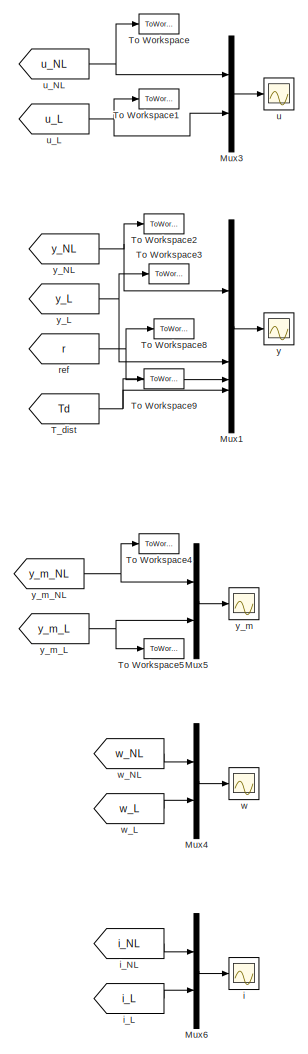
[diagram: root canvas - part 1/5, right side, full height]
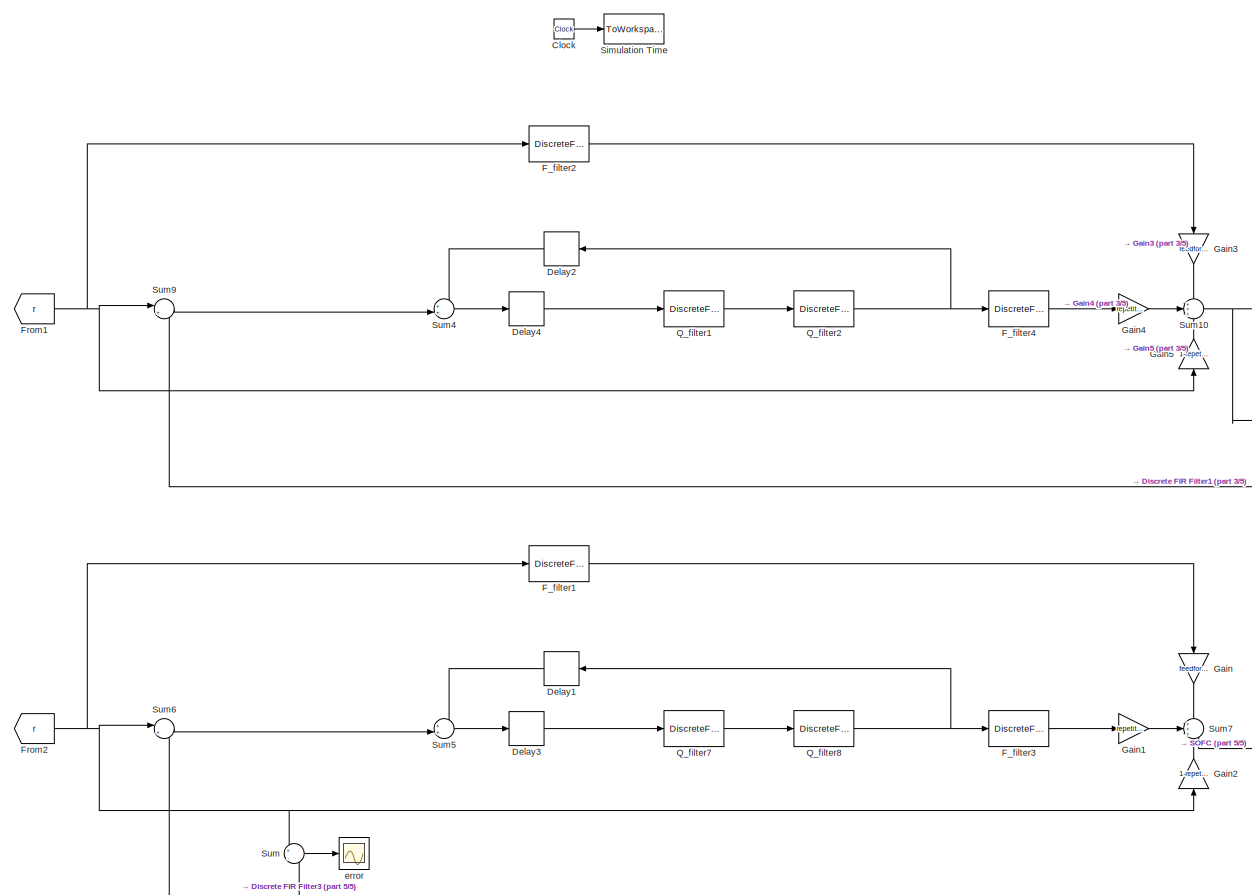
[diagram: root canvas - part 2/5, middle left region]
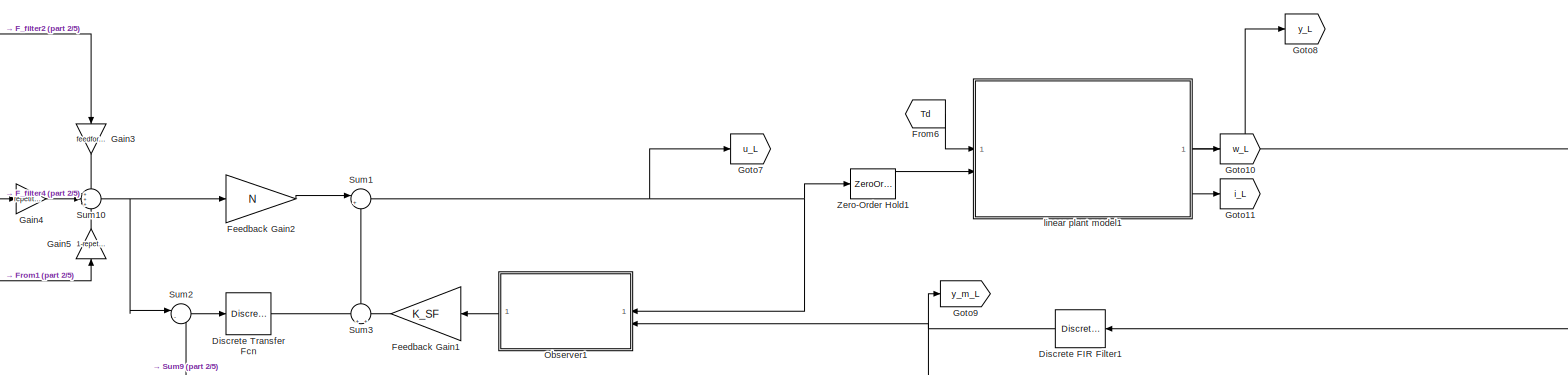
[diagram: root canvas - part 3/5, central region]
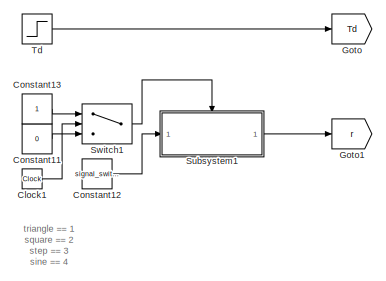
[diagram: root canvas - part 4/5, middle left region]
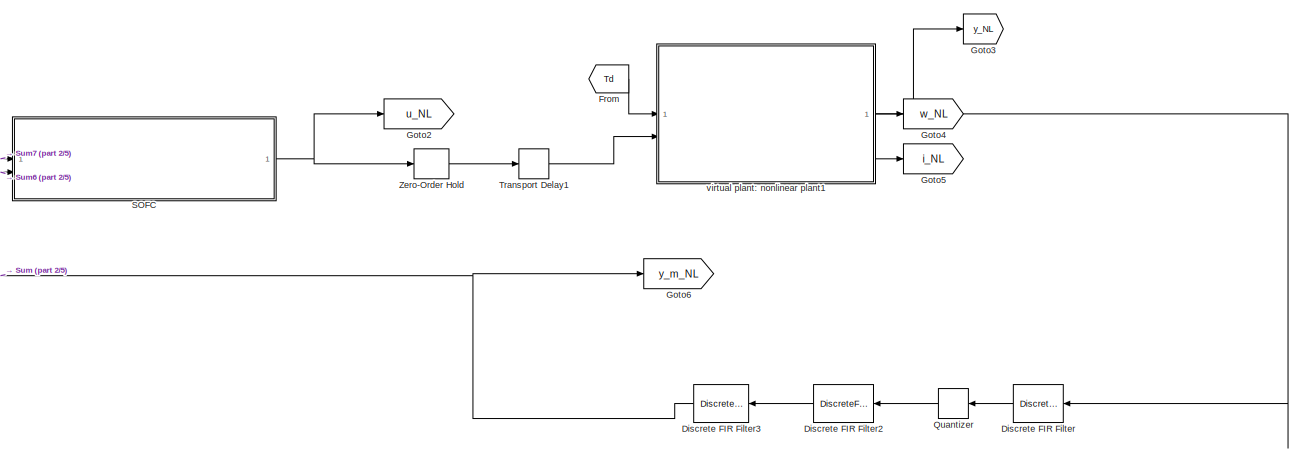
[diagram: root canvas - part 5/5, bottom right region]
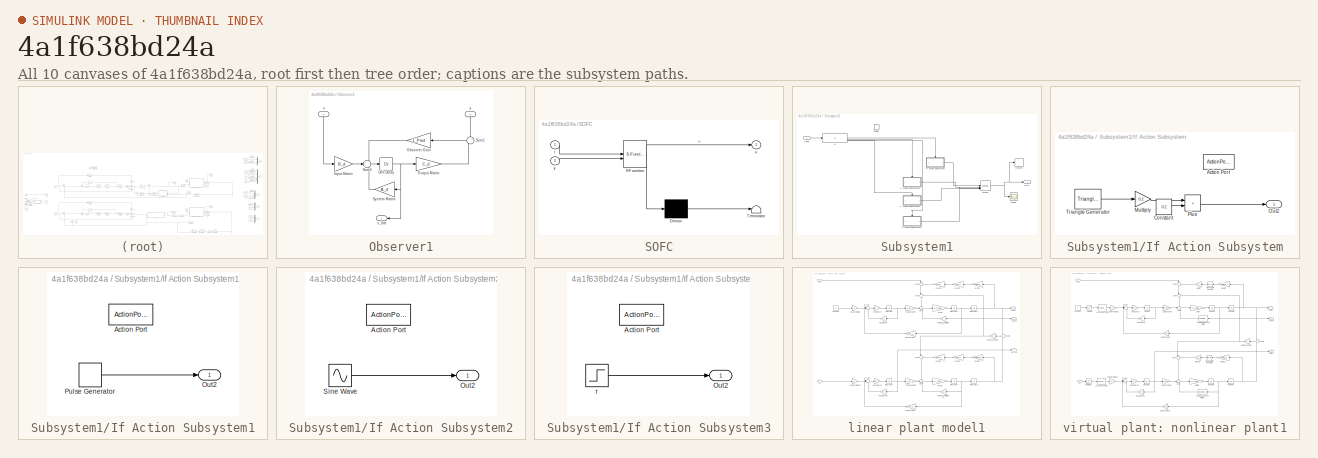
[diagram: thumbnail index - all 10 canvases of the model, root first then tree order]
MODEL slx_4a1f638bd24a
KIND model
CONFIG AbsTol = auto
CONFIG EnableMultiTasking = on
CONFIG FixedStep = auto
CONFIG MaxStep = auto
CONFIG MinStep = auto
CONFIG RelTol = 1e-3
CONFIG SampleTimeConstraint = Unconstrained
CONFIG SolverName = ode45
CONFIG StartTime = 0.0
CONFIG StopTime = 30
BLOCK [Clock] Clock
BLOCK [Clock] Clock1
BLOCK [Constant] Constant11
  Value = 0
BLOCK [Constant] Constant12
  Value = signal_switch
BLOCK [Constant] Constant13
BLOCK [Delay] Delay1
  DelayLength = N1
  InputPortMap = u0
  SampleTime = Ts
BLOCK [Delay] Delay2
  DelayLength = N1
  InputPortMap = u0
  SampleTime = Ts
BLOCK [Delay] Delay3
  DelayLength = Np-N1-N2
  InputPortMap = u0
  SampleTime = Ts
BLOCK [Delay] Delay4
  DelayLength = Np-N1-N2
  InputPortMap = u0
  SampleTime = Ts
BLOCK [DiscreteFir] Discrete FIR Filter
  Coefficients = [1]
  InputPortMap = u0
  OutputPortMap = o0
  SampleTime = Tss
BLOCK [DiscreteFir] Discrete FIR Filter1
  Coefficients = [1]
  InputPortMap = u0
  OutputPortMap = o0
  SampleTime = Ts
BLOCK [DiscreteFir] Discrete FIR Filter2
  Coefficients = [0.25 0.25 0.25 0.25]
  InputPortMap = u0
  OutputPortMap = o0
BLOCK [DiscreteFir] Discrete FIR Filter3
  Coefficients = [1]
  InputPortMap = u0
  OutputPortMap = o0
  SampleTime = Ts
BLOCK [DiscreteTransferFcn] Discrete Transfer Fcn
  Denominator = [1 -1]
  InputPortMap = u0
  Numerator = [0 K_int]
  SampleTime = Ts
BLOCK [DiscreteFilter] F_filter1
  Denominator = F_filter2_denom
  InputPortMap = u0
  Numerator = F_filter2_num
  SampleTime = Ts
BLOCK [DiscreteFilter] F_filter2
  Denominator = F_filter2_denom
  InputPortMap = u0
  Numerator = F_filter2_num
  SampleTime = Ts
BLOCK [DiscreteFilter] F_filter3
  Denominator = F_filter_denom
  InputPortMap = u0
  Numerator = real(F_filter_num)
  SampleTime = Ts
BLOCK [DiscreteFilter] F_filter4
  Denominator = F_filter_denom
  InputPortMap = u0
  Numerator = real(F_filter_num)
  SampleTime = Ts
BLOCK [Gain] Feedback Gain1
  Gain = K_SF
  Multiplication = Matrix(K*u)
BLOCK [Gain] Feedback Gain2
  Gain = N
  Multiplication = Matrix(K*u)
BLOCK [From] From
  GotoTag = Td
BLOCK [From] From1
  GotoTag = r
BLOCK [From] From2
  GotoTag = r
BLOCK [From] From6
  GotoTag = Td
BLOCK [Gain] Gain
  Gain = feedforward_switch
  NameLocation = left
BLOCK [Gain] Gain1
  Gain = repetitive_switch
BLOCK [Gain] Gain2
  Gain = 1-repetitive_switch
  NameLocation = right
BLOCK [Gain] Gain3
  Gain = feedforward_switch
  NameLocation = left
BLOCK [Gain] Gain4
  Gain = repetitive_switch
BLOCK [Gain] Gain5
  Gain = 1-repetitive_switch
  NameLocation = right
BLOCK [Goto] Goto
  GotoTag = Td
BLOCK [Goto] Goto1
  GotoTag = r
BLOCK [Goto] Goto10
  GotoTag = w_L
BLOCK [Goto] Goto11
  GotoTag = i_L
BLOCK [Goto] Goto2
  GotoTag = u_NL
BLOCK [Goto] Goto3
  GotoTag = y_NL
BLOCK [Goto] Goto4
  GotoTag = w_NL
BLOCK [Goto] Goto5
  GotoTag = i_NL
BLOCK [Goto] Goto6
  GotoTag = y_m_NL
BLOCK [Goto] Goto7
  GotoTag = u_L
BLOCK [Goto] Goto8
  GotoTag = y_L
BLOCK [Goto] Goto9
  GotoTag = y_m_L
BLOCK [Mux] Mux1
  DisplayOption = bar
BLOCK [Mux] Mux3
  DisplayOption = bar
  Inputs = 2
BLOCK [Mux] Mux4
  DisplayOption = bar
  Inputs = 2
BLOCK [Mux] Mux5
  DisplayOption = bar
  Inputs = 2
BLOCK [Mux] Mux6
  DisplayOption = bar
  Inputs = 2
BLOCK [SubSystem] Observer1
  NameLocation = top
BLOCK [Gain] Observer1/Input Matrix
  Gain = B_d
  Multiplication = Matrix(K*u)
BLOCK [Gain] Observer1/Observer Gain
  Gain = L_Pred
  Multiplication = Matrix(K*u)
BLOCK [Gain] Observer1/Output Matrix
  Gain = C_d
  Multiplication = Matrix(K*u)
BLOCK [Sum] Observer1/Sum1
  Inputs = +|-
  NameLocation = top
BLOCK [Sum] Observer1/Sum2
  Inputs = +++
BLOCK [Gain] Observer1/System Matrix
  Gain = A_d
  Multiplication = Matrix(K*u)
BLOCK [UnitDelay] Observer1/Unit Delay
  HasFrameUpgradeWarning = on
  SampleTime = Ts
BLOCK [Inport] Observer1/u
  NameLocation = right
BLOCK [Outport] Observer1/x_hat
BLOCK [Inport] Observer1/y
  NameLocation = right
  Port = 2
BLOCK [DiscreteFilter] Q_filter1
  Denominator = Q_filter_denom
  InputPortMap = u0
  Numerator = Q_filter_num
  SampleTime = Ts
BLOCK [DiscreteFilter] Q_filter2
  Denominator = Q_filter_denom
  InputPortMap = u0
  Numerator = Q_filter_num
  SampleTime = Ts
BLOCK [DiscreteFilter] Q_filter7
  Denominator = Q_filter_denom
  InputPortMap = u0
  Numerator = Q_filter_num
  SampleTime = Ts
BLOCK [DiscreteFilter] Q_filter8
  Denominator = Q_filter_denom
  InputPortMap = u0
  Numerator = Q_filter_num
  SampleTime = Ts
BLOCK [Quantizer] Quantizer
  QuantizationInterval = encoder_resolution
BLOCK [SubSystem] SOFC
  ErrorFcn = Stateflow.Translate.translate
  PermitHierarchicalResolution = ExplicitOnly
  SFBlockType = MATLAB Function
  TreatAsAtomicUnit = on
BLOCK [Demux] SOFC/ Demux 
  Outputs = 1
BLOCK [S-Function] SOFC/ SFunction 
  EnableBusSupport = on
  FunctionName = sf_sfun
  Parameters = A,B,C,K,L,N
  PortCounts = [2 2]
  SFcnIsStateOwnerBlock = off
  SFunctionDeploymentMode = off
  Tag = Stateflow S-Function 1
BLOCK [Terminator] SOFC/ Terminator 
BLOCK [Inport] SOFC/r
BLOCK [Outport] SOFC/u
BLOCK [Inport] SOFC/y
  Port = 2
BLOCK [ToWorkspace] Simulation Time
  FixptAsFi = on
  MaxDataPoints = inf
  SampleTime = -1
  VariableName = SimTime
BLOCK [SubSystem] Subsystem1
BLOCK [EnablePort] Subsystem1/Enable
BLOCK [If] Subsystem1/If
  ElseIfExpressions = u1 == 2,u1==3
  IfExpression = u1 == 1
BLOCK [SubSystem] Subsystem1/If Action Subsystem
  TreatAsAtomicUnit = on
BLOCK [ActionPort] Subsystem1/If Action Subsystem/Action Port
  ActionPortLabel = if(u1 == 1)
BLOCK [Constant] Subsystem1/If Action Subsystem/Constant
  Value = 0.2
BLOCK [Gain] Subsystem1/If Action Subsystem/Multiply
  Gain = 0.2
BLOCK [Outport] Subsystem1/If Action Subsystem/Out2
BLOCK [Sum] Subsystem1/If Action Subsystem/Plus
  IconShape = rectangular
BLOCK [Reference] Subsystem1/If Action Subsystem/Triangle Generator  REF=spsTriangleGeneratorLib/Triangle
Generator
  LibrarySourceBlock = sps_lib/Sources/Signal Generator Sources/Triangle\nGenerator
  SourceBlock = spsTriangleGeneratorLib/Triangle\nGenerator
  SourceType = Triangle Generator
BLOCK [SubSystem] Subsystem1/If Action Subsystem1
  TreatAsAtomicUnit = on
BLOCK [ActionPort] Subsystem1/If Action Subsystem1/Action Port
  ActionPortLabel = elseif(u1 == 2)
BLOCK [Outport] Subsystem1/If Action Subsystem1/Out2
BLOCK [DiscretePulseGenerator] Subsystem1/If Action Subsystem1/Pulse Generator
  Amplitude = 0.4
  Period = 1/d_hz/Ts
  PulseWidth = 1/d_hz/2/Ts
  SampleTime = Ts
BLOCK [SubSystem] Subsystem1/If Action Subsystem2
  TreatAsAtomicUnit = on
BLOCK [ActionPort] Subsystem1/If Action Subsystem2/Action Port
  ActionPortLabel = else
BLOCK [Outport] Subsystem1/If Action Subsystem2/Out2
BLOCK [Sin] Subsystem1/If Action Subsystem2/Sine Wave
  Amplitude = 0.2
  Bias = 0.2
  Offset = 0.75*1/d_hz/Ts
  SampleTime = Ts
  Samples = 1/d_hz/Ts
  SineType = Sample based
BLOCK [SubSystem] Subsystem1/If Action Subsystem3
  TreatAsAtomicUnit = on
BLOCK [ActionPort] Subsystem1/If Action Subsystem3/Action Port
  ActionPortLabel = elseif(u1==3)
BLOCK [Outport] Subsystem1/If Action Subsystem3/Out2
BLOCK [Step] Subsystem1/If Action Subsystem3/r
  After = pi
  SampleTime = Ts
BLOCK [Inport] Subsystem1/Input
BLOCK [Merge] Subsystem1/Merge
  Inputs = 4
BLOCK [Outport] Subsystem1/Out1
BLOCK [Record] Subsystem1/Record
  FileSettingsInternal = {"entries":[{"content":{"excelSettings":{"content":{},"type":"Streamout.ExcelSettings"}},"type":"Streamout.FileSettingStorage","uuid":"6662721f-2ff1-4169-acb3-3573d75459ff"}],"packageUris":["http://schema.mathworks.com/mf0/streamout_blocks/R2020a"],"version":"1.0"}
  Layout = [1 1]
  SignalsInternal = {"entries":[{"content":{"signals":[{"content":{"blockPath":["DOBC_whole_v2/Subsystem1/Record"],"channel":[],"dimensions":[1],"domain":"DOBC_whole_v2/Subsystem1/Record","lineColor":"#22b573","plots":[1],"port":1,"sid":[],"signalID":406,"signalName":"Merge"},"type":"RecordBlkView.Signal","uuid":"65e2031a-14ab-4fd6-b67b-1a04d588579a"}]},"type":"RecordBlkView.InputSignals","uuid":"f925c740-60ff-405b-b...<+110ch>
BLOCK [Scope] Subsystem1/Scope
  Floating = off
  NumInputPorts = 1
  ScopeSpecificationString = Simulink.scopes.TimeScopeBlockCfg('CurrentConfiguration', extmgr.ConfigurationSet(extmgr.Configuration('Core','General UI',true),extmgr.Configuration('Core','Source UI',true),extmgr.Configuration('Sources','WiredSimulink',true,'DataLoggingVariableName','ScopeData1'),extmgr.Configuration('Visuals','Time Domain',true,'SerializedDisplays',{struct('MinYLimReal','-0.05','MaxYLimReal','0.45','YLabelReal...<+1402ch>
BLOCK [Sum] Sum
  Inputs = +|-
BLOCK [Sum] Sum1
  Inputs = |+-
BLOCK [Sum] Sum10
  Inputs = +++
BLOCK [Sum] Sum2
  Inputs = |-+
BLOCK [Sum] Sum3
  Inputs = +|+
  NameLocation = right
BLOCK [Sum] Sum4
  Inputs = ++|
BLOCK [Sum] Sum5
  Inputs = ++|
BLOCK [Sum] Sum6
  Inputs = |+-
BLOCK [Sum] Sum7
  Inputs = +++
BLOCK [Sum] Sum9
  Inputs = |+-
BLOCK [Switch] Switch1
  Criteria = u2 > Threshold
  InputSameDT = off
  SaturateOnIntegerOverflow = off
  Threshold = 1
BLOCK [From] T_dist
  GotoTag = Td
BLOCK [Step] Td
  After = 0.05
  SampleTime = 0
  Time = 5
BLOCK [ToWorkspace] To Workspace
  FixptAsFi = on
  MaxDataPoints = inf
  SampleTime = Ts
  VariableName = u_NL
BLOCK [ToWorkspace] To Workspace1
  FixptAsFi = on
  MaxDataPoints = inf
  SampleTime = Ts
  VariableName = u_L
BLOCK [ToWorkspace] To Workspace2
  FixptAsFi = on
  MaxDataPoints = inf
  SampleTime = Ts
  VariableName = y_NL
BLOCK [ToWorkspace] To Workspace3
  FixptAsFi = on
  MaxDataPoints = inf
  SampleTime = Ts
  VariableName = y_L
BLOCK [ToWorkspace] To Workspace4
  FixptAsFi = on
  MaxDataPoints = inf
  SampleTime = Ts
  VariableName = y_m_NL
BLOCK [ToWorkspace] To Workspace5
  FixptAsFi = on
  MaxDataPoints = inf
  SampleTime = Ts
  VariableName = y_m_L
BLOCK [ToWorkspace] To Workspace8
  FixptAsFi = on
  MaxDataPoints = inf
  SampleTime = Ts
  VariableName = r1
BLOCK [ToWorkspace] To Workspace9
  FixptAsFi = on
  MaxDataPoints = inf
  SampleTime = Ts
  VariableName = Td1
BLOCK [TransportDelay] Transport Delay1
  BufferSize = 4096
  DelayTime = Tcomp
  PadeOrder = 2
BLOCK [ZeroOrderHold] Zero-Order Hold
  SampleTime = Ts
BLOCK [ZeroOrderHold] Zero-Order Hold1
  SampleTime = Ts
BLOCK [Scope] error
  Floating = off
  NumInputPorts = 1
  ScopeSpecificationString = Simulink.scopes.TimeScopeBlockCfg('CurrentConfiguration', extmgr.ConfigurationSet(extmgr.Configuration('Core','General UI',true),extmgr.Configuration('Core','Source UI',true),extmgr.Configuration('Sources','WiredSimulink',true,'DataLoggingVariableName','ScopeData1'),extmgr.Configuration('Visuals','Time Domain',true),extmgr.Configuration('Tools','Plot Navigation',true),extmgr.Configuration('Tools',...<+40ch>
BLOCK [Scope] i
  Floating = off
  NumInputPorts = 1
  ScopeSpecificationString = Simulink.scopes.TimeScopeBlockCfg('CurrentConfiguration', extmgr.ConfigurationSet(extmgr.Configuration('Core','General UI',true),extmgr.Configuration('Core','Source UI',true),extmgr.Configuration('Sources','WiredSimulink',true,'DataLoggingVariableName','ScopeData1'),extmgr.Configuration('Visuals','Time Domain',true,'SerializedDisplays',{struct('MinYLimReal','-3.975','MaxYLimReal','4.56633','YLabel...<+1433ch>
BLOCK [From] i_L
  GotoTag = i_L
BLOCK [From] i_NL
  GotoTag = i_NL
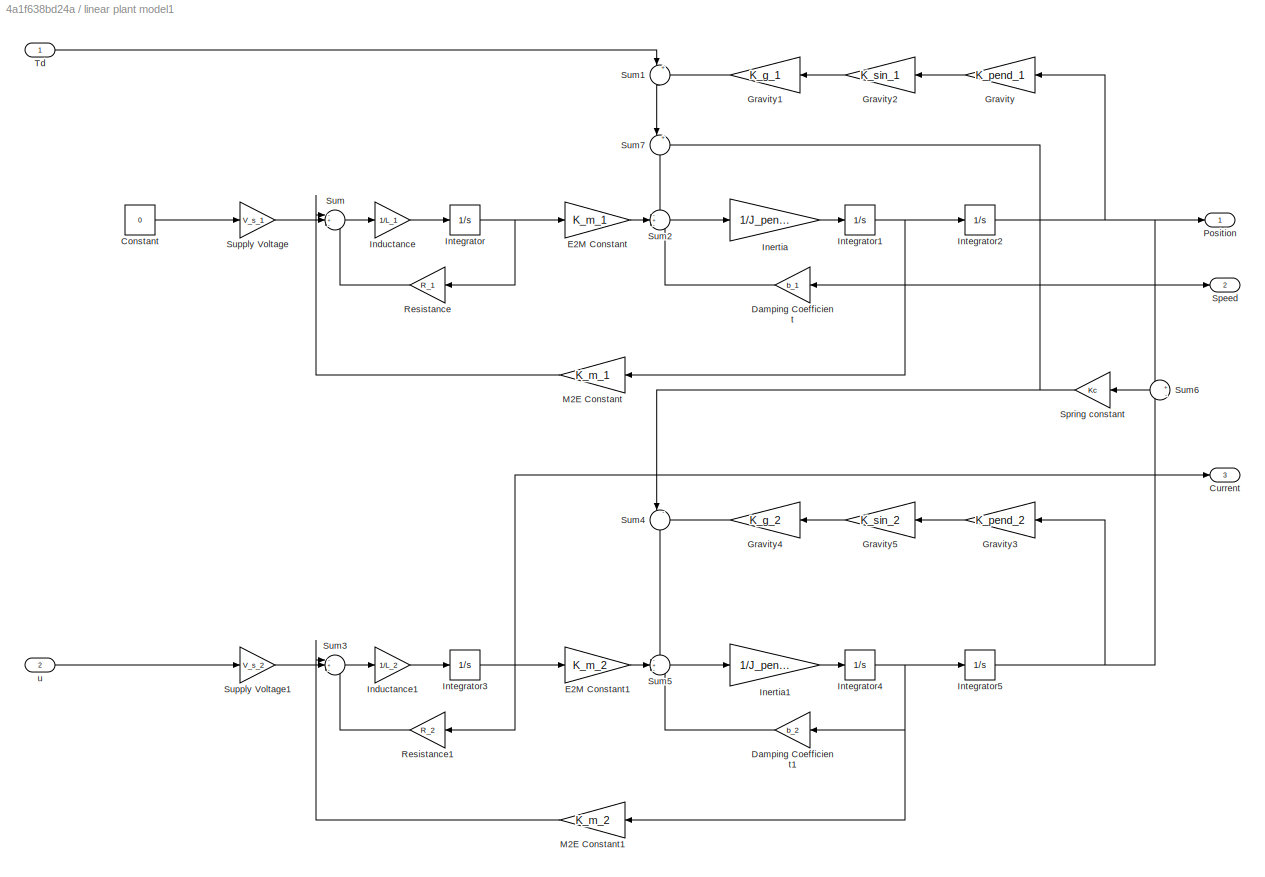
BLOCK [SubSystem] linear plant model1
BLOCK [Constant] linear plant model1/Constant
  Value = 0
BLOCK [Outport] linear plant model1/Current
  Port = 3
BLOCK [Gain] linear plant model1/Damping Coefficient
  Gain = b_1
BLOCK [Gain] linear plant model1/Damping Coefficient1
  Gain = b_2
BLOCK [Gain] linear plant model1/E2M Constant
  Gain = K_m_1
BLOCK [Gain] linear plant model1/E2M Constant1
  Gain = K_m_2
BLOCK [Gain] linear plant model1/Gravity
  Gain = K_pend_1
BLOCK [Gain] linear plant model1/Gravity1
  Gain = K_g_1
BLOCK [Gain] linear plant model1/Gravity2
  Gain = K_sin_1
BLOCK [Gain] linear plant model1/Gravity3
  Gain = K_pend_2
BLOCK [Gain] linear plant model1/Gravity4
  Gain = K_g_2
BLOCK [Gain] linear plant model1/Gravity5
  Gain = K_sin_2
BLOCK [Gain] linear plant model1/Inductance
  Gain = 1/L_1
BLOCK [Gain] linear plant model1/Inductance1
  Gain = 1/L_2
BLOCK [Gain] linear plant model1/Inertia
  Gain = 1/J_pend_1
BLOCK [Gain] linear plant model1/Inertia1
  Gain = 1/J_pend_2
BLOCK [Integrator] linear plant model1/Integrator
BLOCK [Integrator] linear plant model1/Integrator1
BLOCK [Integrator] linear plant model1/Integrator2
BLOCK [Integrator] linear plant model1/Integrator3
BLOCK [Integrator] linear plant model1/Integrator4
BLOCK [Integrator] linear plant model1/Integrator5
BLOCK [Gain] linear plant model1/M2E Constant
  Gain = K_m_1
BLOCK [Gain] linear plant model1/M2E Constant1
  Gain = K_m_2
BLOCK [Outport] linear plant model1/Position
BLOCK [Gain] linear plant model1/Resistance
  Gain = R_1
BLOCK [Gain] linear plant model1/Resistance1
  Gain = R_2
BLOCK [Outport] linear plant model1/Speed
  Port = 2
BLOCK [Gain] linear plant model1/Spring constant
  Gain = Kc
BLOCK [Sum] linear plant model1/Sum
  Inputs = -+-
BLOCK [Sum] linear plant model1/Sum1
  Inputs = |++
  NameLocation = left
BLOCK [Sum] linear plant model1/Sum2
  Inputs = -+-
BLOCK [Sum] linear plant model1/Sum3
  Inputs = -+-
BLOCK [Sum] linear plant model1/Sum4
  Inputs = |-+
  NameLocation = left
BLOCK [Sum] linear plant model1/Sum5
  Inputs = -+-
BLOCK [Sum] linear plant model1/Sum6
  Inputs = +|-
BLOCK [Sum] linear plant model1/Sum7
  Inputs = |++
  NameLocation = left
BLOCK [Gain] linear plant model1/Supply Voltage
  Gain = V_s_1
BLOCK [Gain] linear plant model1/Supply Voltage1
  Gain = V_s_2
BLOCK [Inport] linear plant model1/Td
BLOCK [Inport] linear plant model1/u
  Port = 2
BLOCK [From] ref
  GotoTag = r
BLOCK [Scope] u
  Floating = off
  NumInputPorts = 1
  ScopeSpecificationString = Simulink.scopes.TimeScopeBlockCfg('CurrentConfiguration', extmgr.ConfigurationSet(extmgr.Configuration('Core','General UI',true),extmgr.Configuration('Core','Source UI',true),extmgr.Configuration('Sources','WiredSimulink',true,'DataLoggingVariableName','ScopeData2'),extmgr.Configuration('Visuals','Time Domain',true,'SerializedDisplays',{struct('MinYLimReal','-2.87046','MaxYLimReal','11.51678','YLa...<+1574ch>
BLOCK [From] u_L
  GotoTag = u_L
BLOCK [From] u_NL
  GotoTag = u_NL
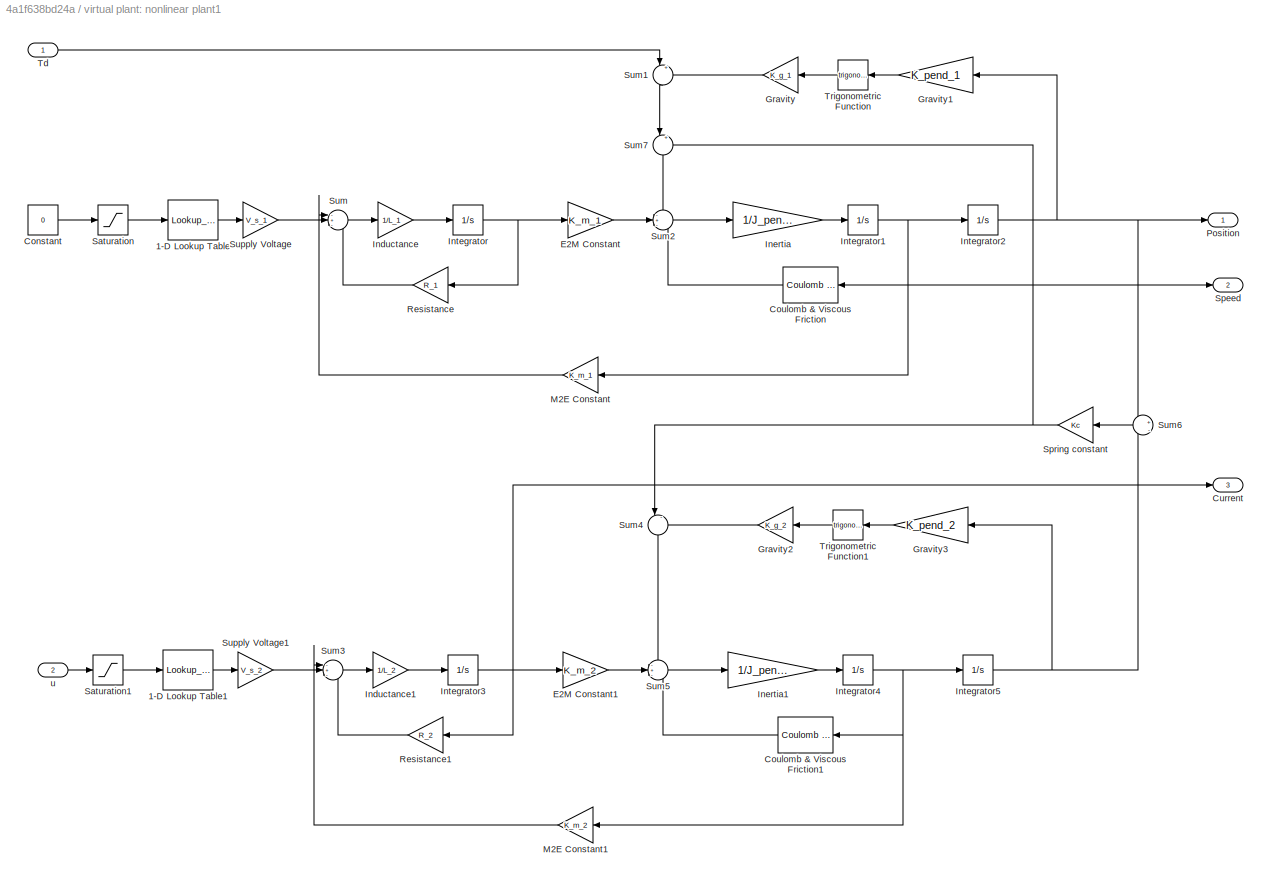
BLOCK [SubSystem] virtual plant: nonlinear plant1
BLOCK [Lookup_n-D] virtual plant: nonlinear plant1/1-D Lookup Table
  BreakpointsForDimension1 = [-1,-0.96,-0.1,-0.06,-0.04,0,0.04,0.06,0.1,0.96,1]
  InputPortMap = u0
  InternalRulePriority = Speed
  NumberOfTableDimensions = 1
  RndMeth = Simplest
  Table = [-10.8,-10.8,-2,-1,-0,0,0,1,2,10.8,10.8]/V_s_1
BLOCK [Lookup_n-D] virtual plant: nonlinear plant1/1-D Lookup Table1
  BreakpointsForDimension1 = [-1,-0.96,-0.1,-0.06,-0.04,0,0.04,0.06,0.1,0.96,1]
  InputPortMap = u0
  InternalRulePriority = Speed
  NumberOfTableDimensions = 1
  RndMeth = Simplest
  Table = [-10.8,-10.8,-2,-1,-0,0,0,1,2,10.8,10.8]/V_s_2
BLOCK [Constant] virtual plant: nonlinear plant1/Constant
  Value = 0
BLOCK [Reference] virtual plant: nonlinear plant1/Coulomb & Viscous Friction  REF=simulink/Discontinuities/Coulomb &
Viscous Friction
  SourceBlock = simulink/Discontinuities/Coulomb &\nViscous Friction
  SourceType = Coulombic and Viscous Friction
BLOCK [Reference] virtual plant: nonlinear plant1/Coulomb & Viscous Friction1  REF=simulink/Discontinuities/Coulomb &
Viscous Friction
  SourceBlock = simulink/Discontinuities/Coulomb &\nViscous Friction
  SourceType = Coulombic and Viscous Friction
BLOCK [Outport] virtual plant: nonlinear plant1/Current
  Port = 3
BLOCK [Gain] virtual plant: nonlinear plant1/E2M Constant
  Gain = K_m_1
BLOCK [Gain] virtual plant: nonlinear plant1/E2M Constant1
  Gain = K_m_2
BLOCK [Gain] virtual plant: nonlinear plant1/Gravity
  Gain = K_g_1
BLOCK [Gain] virtual plant: nonlinear plant1/Gravity1
  Gain = K_pend_1
BLOCK [Gain] virtual plant: nonlinear plant1/Gravity2
  Gain = K_g_2
BLOCK [Gain] virtual plant: nonlinear plant1/Gravity3
  Gain = K_pend_2
BLOCK [Gain] virtual plant: nonlinear plant1/Inductance
  Gain = 1/L_1
BLOCK [Gain] virtual plant: nonlinear plant1/Inductance1
  Gain = 1/L_2
BLOCK [Gain] virtual plant: nonlinear plant1/Inertia
  Gain = 1/J_pend_1
BLOCK [Gain] virtual plant: nonlinear plant1/Inertia1
  Gain = 1/J_pend_2
BLOCK [Integrator] virtual plant: nonlinear plant1/Integrator
BLOCK [Integrator] virtual plant: nonlinear plant1/Integrator1
BLOCK [Integrator] virtual plant: nonlinear plant1/Integrator2
BLOCK [Integrator] virtual plant: nonlinear plant1/Integrator3
BLOCK [Integrator] virtual plant: nonlinear plant1/Integrator4
BLOCK [Integrator] virtual plant: nonlinear plant1/Integrator5
BLOCK [Gain] virtual plant: nonlinear plant1/M2E Constant
  Gain = K_m_1
BLOCK [Gain] virtual plant: nonlinear plant1/M2E Constant1
  Gain = K_m_2
BLOCK [Outport] virtual plant: nonlinear plant1/Position
BLOCK [Gain] virtual plant: nonlinear plant1/Resistance
  Gain = R_1
BLOCK [Gain] virtual plant: nonlinear plant1/Resistance1
  Gain = R_2
BLOCK [Saturate] virtual plant: nonlinear plant1/Saturation
  LowerLimit = -saturation
  UpperLimit = saturation
BLOCK [Saturate] virtual plant: nonlinear plant1/Saturation1
  LowerLimit = -saturation
  UpperLimit = saturation
BLOCK [Outport] virtual plant: nonlinear plant1/Speed
  Port = 2
BLOCK [Gain] virtual plant: nonlinear plant1/Spring constant
  Gain = Kc
BLOCK [Sum] virtual plant: nonlinear plant1/Sum
  Inputs = -+-
BLOCK [Sum] virtual plant: nonlinear plant1/Sum1
  Inputs = |++
  NameLocation = left
BLOCK [Sum] virtual plant: nonlinear plant1/Sum2
  Inputs = -+-
BLOCK [Sum] virtual plant: nonlinear plant1/Sum3
  Inputs = -+-
BLOCK [Sum] virtual plant: nonlinear plant1/Sum4
  Inputs = |-+
  NameLocation = left
BLOCK [Sum] virtual plant: nonlinear plant1/Sum5
  Inputs = -+-
BLOCK [Sum] virtual plant: nonlinear plant1/Sum6
  Inputs = +|-
BLOCK [Sum] virtual plant: nonlinear plant1/Sum7
  Inputs = |++
  NameLocation = left
BLOCK [Gain] virtual plant: nonlinear plant1/Supply Voltage
  Gain = V_s_1
BLOCK [Gain] virtual plant: nonlinear plant1/Supply Voltage1
  Gain = V_s_2
BLOCK [Inport] virtual plant: nonlinear plant1/Td
BLOCK [Trigonometry] virtual plant: nonlinear plant1/Trigonometric Function
BLOCK [Trigonometry] virtual plant: nonlinear plant1/Trigonometric Function1
BLOCK [Inport] virtual plant: nonlinear plant1/u
  Port = 2
BLOCK [Scope] w	
  Floating = off
  NumInputPorts = 1
  ScopeSpecificationString = Simulink.scopes.TimeScopeBlockCfg('CurrentConfiguration', extmgr.ConfigurationSet(extmgr.Configuration('Core','General UI',true),extmgr.Configuration('Core','Source UI',true),extmgr.Configuration('Sources','WiredSimulink',true,'DataLoggingVariableName','ScopeData3'),extmgr.Configuration('Visuals','Time Domain',true,'SerializedDisplays',{struct('MinYLimReal','-23.52538','MaxYLimReal','47.43925','YL...<+1440ch>
BLOCK [From] w_L
  GotoTag = w_L
BLOCK [From] w_NL
  GotoTag = w_NL
BLOCK [Scope] y
  Floating = off
  NumInputPorts = 1
  ScopeSpecificationString = Simulink.scopes.TimeScopeBlockCfg('CurrentConfiguration', extmgr.ConfigurationSet(extmgr.Configuration('Core','General UI',true),extmgr.Configuration('Core','Source UI',true),extmgr.Configuration('Sources','WiredSimulink',true,'DataLoggingVariableName','ScopeData4'),extmgr.Configuration('Visuals','Time Domain',true,'SerializedDisplays',{struct('MinYLimReal','-0.00071','MaxYLimReal','0.04191','YLab...<+1565ch>
BLOCK [From] y_L
  GotoTag = y_L
BLOCK [From] y_NL
  GotoTag = y_NL
BLOCK [Scope] y_m
  Floating = off
  NumInputPorts = 1
  ScopeSpecificationString = Simulink.scopes.TimeScopeBlockCfg('CurrentConfiguration', extmgr.ConfigurationSet(extmgr.Configuration('Core','General UI',true),extmgr.Configuration('Core','Source UI',true),extmgr.Configuration('Sources','WiredSimulink',true,'DataLoggingVariableName','ScopeData5'),extmgr.Configuration('Visuals','Time Domain',true,'SerializedDisplays',{struct('MinYLimReal','-0.12959','MaxYLimReal','1.16632','YLab...<+1447ch>
BLOCK [From] y_m_L
  GotoTag = y_m_L
BLOCK [From] y_m_NL
  GotoTag = y_m_NL
ANNOTATION (root): triangle == 1 square == 2 step == 3 sine == 4
LINE Clock1:1 -> Switch1:2
LINE Clock:1 -> Simulation Time:1
LINE Constant11:1 -> Switch1:3
LINE Constant12:1 -> Subsystem1:1
LINE Constant13:1 -> Switch1:1
LINE Delay1:1 -> Sum5:1
LINE Delay2:1 -> Sum4:1
LINE Delay3:1 -> Q_filter7:1
LINE Delay4:1 -> Q_filter1:1
NET Discrete FIR Filter1:1 -> Goto9:1, Observer1:2, Sum2:2, Sum9:2
LINE Discrete FIR Filter2:1 -> Discrete FIR Filter3:1
NET Discrete FIR Filter3:1 -> Goto6:1, SOFC:2, Sum6:2, Sum:2
LINE Discrete FIR Filter:1 -> Quantizer:1
LINE Discrete Transfer Fcn:1 -> Sum3:1
LINE F_filter1:1 -> Gain:1
LINE F_filter2:1 -> Gain3:1
LINE F_filter3:1 -> Gain1:1
LINE F_filter4:1 -> Gain4:1
LINE Feedback Gain1:1 -> Sum3:2
LINE Feedback Gain2:1 -> Sum1:1
NET From1:1 -> F_filter2:1, Gain5:1, Sum9:1
NET From2:1 -> F_filter1:1, Gain2:1, Sum6:1, Sum:1
LINE From6:1 -> linear plant model1:1
LINE From:1 -> virtual plant: nonlinear plant1:1
LINE Gain1:1 -> Sum7:2
LINE Gain2:1 -> Sum7:3
LINE Gain3:1 -> Sum10:1
LINE Gain4:1 -> Sum10:2
LINE Gain5:1 -> Sum10:3
LINE Gain:1 -> Sum7:1
LINE Mux1:1 -> y:1
LINE Mux3:1 -> u:1
LINE Mux4:1 -> w	:1
LINE Mux5:1 -> y_m:1
LINE Mux6:1 -> i:1
LINE Observer1/Input Matrix:1 -> Observer1/Sum2:2
LINE Observer1/Observer Gain:1 -> Observer1/Sum2:1
LINE Observer1/Output Matrix:1 -> Observer1/Sum1:2
LINE Observer1/Sum1:1 -> Observer1/Observer Gain:1
LINE Observer1/Sum2:1 -> Observer1/Unit Delay:1
LINE Observer1/System Matrix:1 -> Observer1/Sum2:3
NET Observer1/Unit Delay:1 -> Observer1/Output Matrix:1, Observer1/System Matrix:1, Observer1/x_hat:1
LINE Observer1/u:1 -> Observer1/Input Matrix:1
LINE Observer1/y:1 -> Observer1/Sum1:1
LINE Observer1:1 -> Feedback Gain1:1
LINE Q_filter1:1 -> Q_filter2:1
NET Q_filter2:1 -> Delay2:1, F_filter4:1
LINE Q_filter7:1 -> Q_filter8:1
NET Q_filter8:1 -> Delay1:1, F_filter3:1
LINE Quantizer:1 -> Discrete FIR Filter2:1
NET SOFC:1 -> Goto2:1, Zero-Order Hold:1
LINE Subsystem1/If Action Subsystem/Constant:1 -> Subsystem1/If Action Subsystem/Plus:2
LINE Subsystem1/If Action Subsystem/Multiply:1 -> Subsystem1/If Action Subsystem/Plus:1
LINE Subsystem1/If Action Subsystem/Plus:1 -> Subsystem1/If Action Subsystem/Out2:1
LINE Subsystem1/If Action Subsystem/Triangle Generator:1 -> Subsystem1/If Action Subsystem/Multiply:1
LINE Subsystem1/If Action Subsystem1/Pulse Generator:1 -> Subsystem1/If Action Subsystem1/Out2:1
LINE Subsystem1/If Action Subsystem1:1 -> Subsystem1/Merge:2
LINE Subsystem1/If Action Subsystem2/Sine Wave:1 -> Subsystem1/If Action Subsystem2/Out2:1
LINE Subsystem1/If Action Subsystem2:1 -> Subsystem1/Merge:3
LINE Subsystem1/If Action Subsystem3/r:1 -> Subsystem1/If Action Subsystem3/Out2:1
LINE Subsystem1/If Action Subsystem3:1 -> Subsystem1/Merge:4
LINE Subsystem1/If Action Subsystem:1 -> Subsystem1/Merge:1
LINE Subsystem1/If:1 -> Subsystem1/If Action Subsystem:ifaction
LINE Subsystem1/If:2 -> Subsystem1/If Action Subsystem1:ifaction
LINE Subsystem1/If:3 -> Subsystem1/If Action Subsystem3:ifaction
LINE Subsystem1/If:4 -> Subsystem1/If Action Subsystem2:ifaction
LINE Subsystem1/Input:1 -> Subsystem1/If:1
NET Subsystem1/Merge:1 -> Subsystem1/Out1:1, Subsystem1/Record:1, Subsystem1/Scope:1
LINE Subsystem1:1 -> Goto1:1
NET Sum10:1 -> Feedback Gain2:1, Sum2:1
NET Sum1:1 -> Goto7:1, Observer1:1, Zero-Order Hold1:1
LINE Sum2:1 -> Discrete Transfer Fcn:1
LINE Sum3:1 -> Sum1:2
LINE Sum4:1 -> Delay4:1
LINE Sum5:1 -> Delay3:1
LINE Sum6:1 -> Sum5:2
LINE Sum7:1 -> SOFC:1
LINE Sum9:1 -> Sum4:2
LINE Sum:1 -> error:1
LINE Switch1:1 -> Subsystem1:enable
NET T_dist:1 -> Mux1:4, To Workspace9:1
LINE Td:1 -> Goto:1
LINE Transport Delay1:1 -> virtual plant: nonlinear plant1:2
LINE Zero-Order Hold1:1 -> linear plant model1:2
LINE Zero-Order Hold:1 -> Transport Delay1:1
LINE i_L:1 -> Mux6:2
LINE i_NL:1 -> Mux6:1
LINE linear plant model1/Constant:1 -> linear plant model1/Supply Voltage:1
LINE linear plant model1/Damping Coefficient1:1 -> linear plant model1/Sum5:3
LINE linear plant model1/Damping Coefficient:1 -> linear plant model1/Sum2:3
LINE linear plant model1/E2M Constant1:1 -> linear plant model1/Sum5:2
LINE linear plant model1/E2M Constant:1 -> linear plant model1/Sum2:2
LINE linear plant model1/Gravity1:1 -> linear plant model1/Sum1:2
LINE linear plant model1/Gravity2:1 -> linear plant model1/Gravity1:1
LINE linear plant model1/Gravity3:1 -> linear plant model1/Gravity5:1
LINE linear plant model1/Gravity4:1 -> linear plant model1/Sum4:2
LINE linear plant model1/Gravity5:1 -> linear plant model1/Gravity4:1
LINE linear plant model1/Gravity:1 -> linear plant model1/Gravity2:1
LINE linear plant model1/Inductance1:1 -> linear plant model1/Integrator3:1
LINE linear plant model1/Inductance:1 -> linear plant model1/Integrator:1
LINE linear plant model1/Inertia1:1 -> linear plant model1/Integrator4:1
LINE linear plant model1/Inertia:1 -> linear plant model1/Integrator1:1
NET linear plant model1/Integrator1:1 -> linear plant model1/Damping Coefficient:1, linear plant model1/Integrator2:1, linear plant model1/M2E Constant:1, linear plant model1/Speed:1
NET linear plant model1/Integrator2:1 -> linear plant model1/Gravity:1, linear plant model1/Position:1, linear plant model1/Sum6:1
NET linear plant model1/Integrator3:1 -> linear plant model1/Current:1, linear plant model1/E2M Constant1:1, linear plant model1/Resistance1:1
NET linear plant model1/Integrator4:1 -> linear plant model1/Damping Coefficient1:1, linear plant model1/Integrator5:1, linear plant model1/M2E Constant1:1
NET linear plant model1/Integrator5:1 -> linear plant model1/Gravity3:1, linear plant model1/Sum6:2
NET linear plant model1/Integrator:1 -> linear plant model1/E2M Constant:1, linear plant model1/Resistance:1
LINE linear plant model1/M2E Constant1:1 -> linear plant model1/Sum3:1
LINE linear plant model1/M2E Constant:1 -> linear plant model1/Sum:1
LINE linear plant model1/Resistance1:1 -> linear plant model1/Sum3:3
LINE linear plant model1/Resistance:1 -> linear plant model1/Sum:3
NET linear plant model1/Spring constant:1 -> linear plant model1/Sum4:1, linear plant model1/Sum7:2
LINE linear plant model1/Sum1:1 -> linear plant model1/Sum7:1
LINE linear plant model1/Sum2:1 -> linear plant model1/Inertia:1
LINE linear plant model1/Sum3:1 -> linear plant model1/Inductance1:1
LINE linear plant model1/Sum4:1 -> linear plant model1/Sum5:1
LINE linear plant model1/Sum5:1 -> linear plant model1/Inertia1:1
LINE linear plant model1/Sum6:1 -> linear plant model1/Spring constant:1
LINE linear plant model1/Sum7:1 -> linear plant model1/Sum2:1
LINE linear plant model1/Sum:1 -> linear plant model1/Inductance:1
LINE linear plant model1/Supply Voltage1:1 -> linear plant model1/Sum3:2
LINE linear plant model1/Supply Voltage:1 -> linear plant model1/Sum:2
LINE linear plant model1/Td:1 -> linear plant model1/Sum1:1
LINE linear plant model1/u:1 -> linear plant model1/Supply Voltage1:1
NET linear plant model1:1 -> Discrete FIR Filter1:1, Goto8:1
LINE linear plant model1:2 -> Goto10:1
LINE linear plant model1:3 -> Goto11:1
NET ref:1 -> Mux1:3, To Workspace8:1
NET u_L:1 -> Mux3:2, To Workspace1:1
NET u_NL:1 -> Mux3:1, To Workspace:1
LINE virtual plant: nonlinear plant1/1-D Lookup Table1:1 -> virtual plant: nonlinear plant1/Supply Voltage1:1
LINE virtual plant: nonlinear plant1/1-D Lookup Table:1 -> virtual plant: nonlinear plant1/Supply Voltage:1
LINE virtual plant: nonlinear plant1/Constant:1 -> virtual plant: nonlinear plant1/Saturation:1
LINE virtual plant: nonlinear plant1/Coulomb & Viscous Friction1:1 -> virtual plant: nonlinear plant1/Sum5:3
LINE virtual plant: nonlinear plant1/Coulomb & Viscous Friction:1 -> virtual plant: nonlinear plant1/Sum2:3
LINE virtual plant: nonlinear plant1/E2M Constant1:1 -> virtual plant: nonlinear plant1/Sum5:2
LINE virtual plant: nonlinear plant1/E2M Constant:1 -> virtual plant: nonlinear plant1/Sum2:2
LINE virtual plant: nonlinear plant1/Gravity1:1 -> virtual plant: nonlinear plant1/Trigonometric Function:1
LINE virtual plant: nonlinear plant1/Gravity2:1 -> virtual plant: nonlinear plant1/Sum4:2
LINE virtual plant: nonlinear plant1/Gravity3:1 -> virtual plant: nonlinear plant1/Trigonometric Function1:1
LINE virtual plant: nonlinear plant1/Gravity:1 -> virtual plant: nonlinear plant1/Sum1:2
LINE virtual plant: nonlinear plant1/Inductance1:1 -> virtual plant: nonlinear plant1/Integrator3:1
LINE virtual plant: nonlinear plant1/Inductance:1 -> virtual plant: nonlinear plant1/Integrator:1
LINE virtual plant: nonlinear plant1/Inertia1:1 -> virtual plant: nonlinear plant1/Integrator4:1
LINE virtual plant: nonlinear plant1/Inertia:1 -> virtual plant: nonlinear plant1/Integrator1:1
NET virtual plant: nonlinear plant1/Integrator1:1 -> virtual plant: nonlinear plant1/Coulomb & Viscous Friction:1, virtual plant: nonlinear plant1/Integrator2:1, virtual plant: nonlinear plant1/M2E Constant:1, virtual plant: nonlinear plant1/Speed:1
NET virtual plant: nonlinear plant1/Integrator2:1 -> virtual plant: nonlinear plant1/Gravity1:1, virtual plant: nonlinear plant1/Position:1, virtual plant: nonlinear plant1/Sum6:1
NET virtual plant: nonlinear plant1/Integrator3:1 -> virtual plant: nonlinear plant1/Current:1, virtual plant: nonlinear plant1/E2M Constant1:1, virtual plant: nonlinear plant1/Resistance1:1
NET virtual plant: nonlinear plant1/Integrator4:1 -> virtual plant: nonlinear plant1/Coulomb & Viscous Friction1:1, virtual plant: nonlinear plant1/Integrator5:1, virtual plant: nonlinear plant1/M2E Constant1:1
NET virtual plant: nonlinear plant1/Integrator5:1 -> virtual plant: nonlinear plant1/Gravity3:1, virtual plant: nonlinear plant1/Sum6:2
NET virtual plant: nonlinear plant1/Integrator:1 -> virtual plant: nonlinear plant1/E2M Constant:1, virtual plant: nonlinear plant1/Resistance:1
LINE virtual plant: nonlinear plant1/M2E Constant1:1 -> virtual plant: nonlinear plant1/Sum3:1
LINE virtual plant: nonlinear plant1/M2E Constant:1 -> virtual plant: nonlinear plant1/Sum:1
LINE virtual plant: nonlinear plant1/Resistance1:1 -> virtual plant: nonlinear plant1/Sum3:3
LINE virtual plant: nonlinear plant1/Resistance:1 -> virtual plant: nonlinear plant1/Sum:3
LINE virtual plant: nonlinear plant1/Saturation1:1 -> virtual plant: nonlinear plant1/1-D Lookup Table1:1
LINE virtual plant: nonlinear plant1/Saturation:1 -> virtual plant: nonlinear plant1/1-D Lookup Table:1
NET virtual plant: nonlinear plant1/Spring constant:1 -> virtual plant: nonlinear plant1/Sum4:1, virtual plant: nonlinear plant1/Sum7:2
LINE virtual plant: nonlinear plant1/Sum1:1 -> virtual plant: nonlinear plant1/Sum7:1
LINE virtual plant: nonlinear plant1/Sum2:1 -> virtual plant: nonlinear plant1/Inertia:1
LINE virtual plant: nonlinear plant1/Sum3:1 -> virtual plant: nonlinear plant1/Inductance1:1
LINE virtual plant: nonlinear plant1/Sum4:1 -> virtual plant: nonlinear plant1/Sum5:1
LINE virtual plant: nonlinear plant1/Sum5:1 -> virtual plant: nonlinear plant1/Inertia1:1
LINE virtual plant: nonlinear plant1/Sum6:1 -> virtual plant: nonlinear plant1/Spring constant:1
LINE virtual plant: nonlinear plant1/Sum7:1 -> virtual plant: nonlinear plant1/Sum2:1
LINE virtual plant: nonlinear plant1/Sum:1 -> virtual plant: nonlinear plant1/Inductance:1
LINE virtual plant: nonlinear plant1/Supply Voltage1:1 -> virtual plant: nonlinear plant1/Sum3:2
LINE virtual plant: nonlinear plant1/Supply Voltage:1 -> virtual plant: nonlinear plant1/Sum:2
LINE virtual plant: nonlinear plant1/Td:1 -> virtual plant: nonlinear plant1/Sum1:1
LINE virtual plant: nonlinear plant1/Trigonometric Function1:1 -> virtual plant: nonlinear plant1/Gravity2:1
LINE virtual plant: nonlinear plant1/Trigonometric Function:1 -> virtual plant: nonlinear plant1/Gravity:1
LINE virtual plant: nonlinear plant1/u:1 -> virtual plant: nonlinear plant1/Saturation1:1
NET virtual plant: nonlinear plant1:1 -> Discrete FIR Filter:1, Goto3:1
LINE virtual plant: nonlinear plant1:2 -> Goto4:1
LINE virtual plant: nonlinear plant1:3 -> Goto5:1
LINE w_L:1 -> Mux4:2
LINE w_NL:1 -> Mux4:1
NET y_L:1 -> Mux1:2, To Workspace3:1
NET y_NL:1 -> Mux1:1, To Workspace2:1
NET y_m_L:1 -> Mux5:2, To Workspace5:1
NET y_m_NL:1 -> Mux5:1, To Workspace4:1
note: NET lines group one-source signal fan-out (src -> all destinations, sorted); 1:1 wires keep LINE
CHART SOFC states=1 transitions=1
  STATE_LABEL 'eML_blk_kernel()'
  STATE_LABEL 'SCRIPT:\nfunction u = controller(r,y,A, B, C, K, L, N)\n\npersistent xhat xint;  %memory for the state\n\n  if isempty(xhat)  %local variable initialization\n      n=size(L,1);\n        xhat=zeros(n,1); \n      m = size(K,2)-n;\n        xint=zeros(m,1);  \n  end\nxaug=[xhat; xint]; %Augmented state include the state for the integrator\n%u = -K*xaug+N*r; %Control computation with integral action \nu_unsat = -K*...<+233ch>'
CHART  states=0 transitions=0
